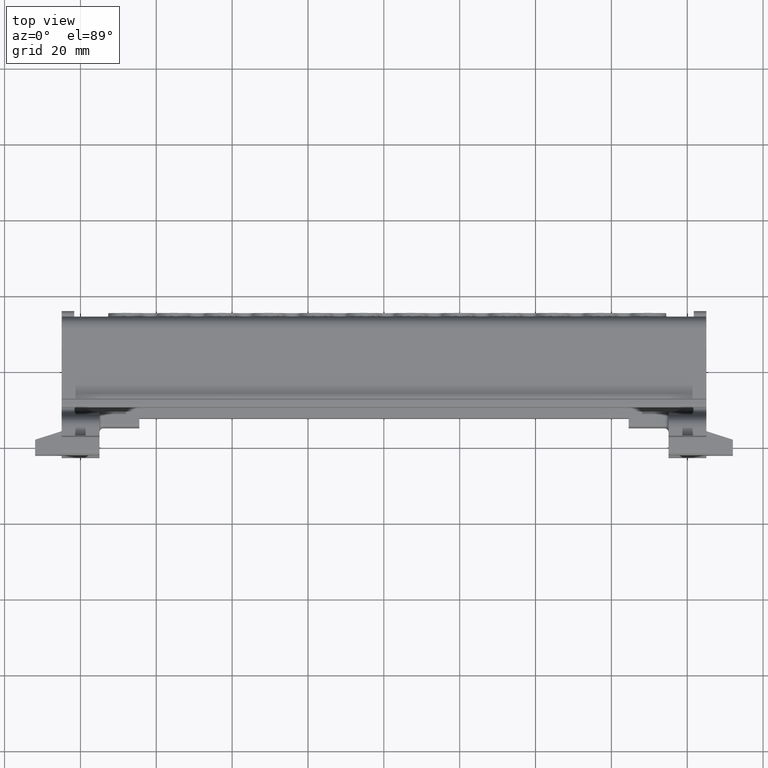
[diagram: clean part render]
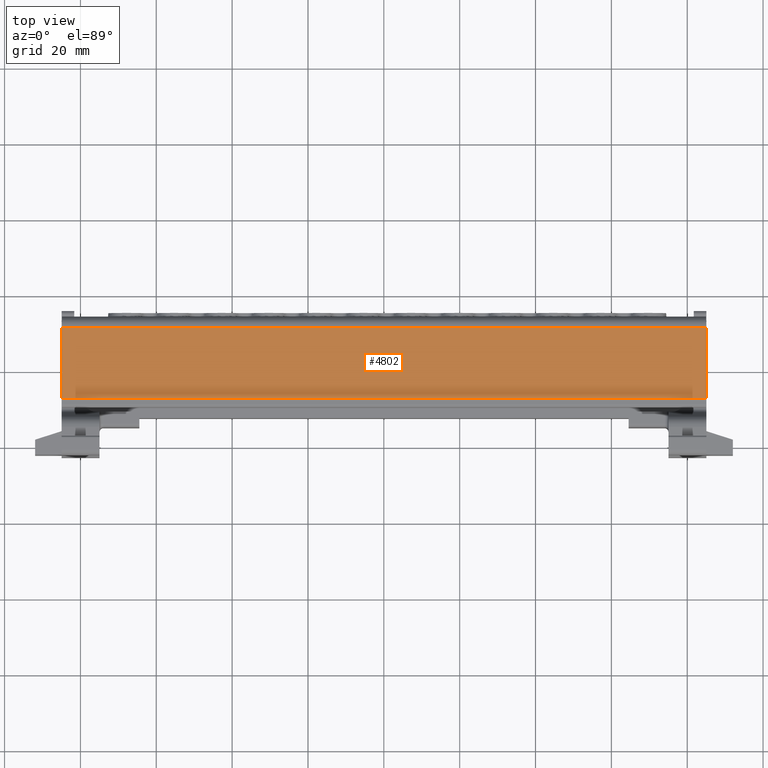
[diagram: same view with one face highlighted and labeled with its STEP entity id]
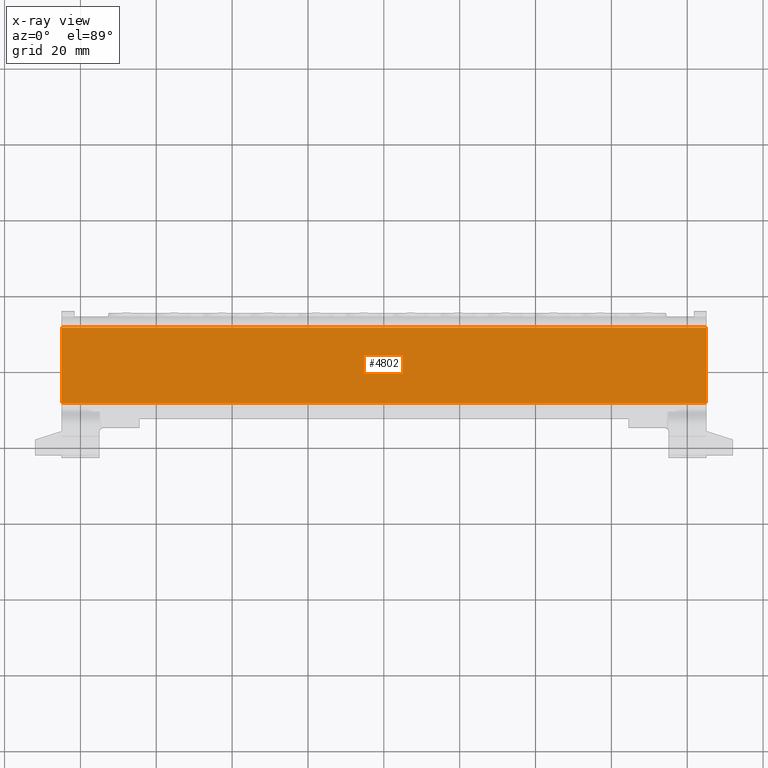
[diagram: x-ray of the same camera — body ghosted, the highlighted face saturated]
A machine part, top view. The second image highlights one B-rep face of the part: STEP entity #4802.
The next image is the same camera in x-ray: the body ghosted, the highlighted face saturated — about 0% of this face is hidden behind the body in this view.
In plain terms, the highlighted planar face has unit normal (0, 0.0175, 0.9998).
Its self-contained STEP definition (entity closure, byte-faithful):
#25 = EDGE_LOOP ( 'NONE', ( #2157, #2141, #2131, #2153 ) ) ;
#2131 = ORIENTED_EDGE ( 'NONE', *, *, #7014, .T. ) ;
#2141 = ORIENTED_EDGE ( 'NONE', *, *, #12001, .T. ) ;
#2153 = ORIENTED_EDGE ( 'NONE', *, *, #12154, .F. ) ;
#2157 = ORIENTED_EDGE ( 'NONE', *, *, #7176, .F. ) ;
#4802 = ADVANCED_FACE ( 'NONE', ( #31700 ), #31721, .T. ) ;
#7014 = EDGE_CURVE ( 'NONE', #9688, #9762, #8688, .T. ) ;
#7176 = EDGE_CURVE ( 'NONE', #9699, #9761, #13686, .T. ) ;
#8688 = LINE ( 'NONE', #8711, #24355 ) ;
#8705 = DIRECTION ( 'NONE',  ( -1.000000000000000000, 7.897574933814930700E-015, 3.853197141484226100E-015 ) ) ;
#8711 = CARTESIAN_POINT ( 'NONE',  ( -12.35269769582556900, 71.26518187041276100, 47.07379214778563900 ) ) ;
#9688 = VERTEX_POINT ( 'NONE', #16908 ) ;
#9699 = VERTEX_POINT ( 'NONE', #16888 ) ;
#9761 = VERTEX_POINT ( 'NONE', #16957 ) ;
#9762 = VERTEX_POINT ( 'NONE', #16930 ) ;
#12001 = EDGE_CURVE ( 'NONE', #9699, #9688, #18482, .T. ) ;
#12154 = EDGE_CURVE ( 'NONE', #9761, #9762, #18065, .T. ) ;
#13686 = LINE ( 'NONE', #13772, #24444 ) ;
#13754 = DIRECTION ( 'NONE',  ( -1.000000000000000000, 7.897574933814930700E-015, 3.853197141484226100E-015 ) ) ;
#13772 = CARTESIAN_POINT ( 'NONE',  ( -12.35269769582568100, 51.37580093707678900, 47.42095043314505900 ) ) ;
#16888 = CARTESIAN_POINT ( 'NONE',  ( 44.94230230417427000, 51.37580093707634200, 47.42095043314483900 ) ) ;
#16908 = CARTESIAN_POINT ( 'NONE',  ( 44.94230230417442600, 71.26518187041230600, 47.07379214778541900 ) ) ;
#16930 = CARTESIAN_POINT ( 'NONE',  ( -124.8476976958255300, 71.26518187041365600, 47.07379214778607200 ) ) ;
#16957 = CARTESIAN_POINT ( 'NONE',  ( -124.8476976958256900, 51.37580093707767800, 47.42095043314548500 ) ) ;
#18065 = LINE ( 'NONE', #18130, #34546 ) ;
#18119 = DIRECTION ( 'NONE',  ( 7.863057209979978000E-015, 0.9998477058144494800, -0.01745179582685387600 ) ) ;
#18130 = CARTESIAN_POINT ( 'NONE',  ( -124.8476976958256000, 62.90220683324508900, 47.21976331119930800 ) ) ;
#18482 = LINE ( 'NONE', #18483, #34213 ) ;
#18483 = CARTESIAN_POINT ( 'NONE',  ( 44.94230230417436200, 62.90220683324373900, 47.21976331119865500 ) ) ;
#18491 = DIRECTION ( 'NONE',  ( 7.863057209979978000E-015, 0.9998477058144494800, -0.01745179582685387600 ) ) ;
#24355 = VECTOR ( 'NONE', #8705, 1000.000000000000000 ) ;
#24444 = VECTOR ( 'NONE', #13754, 1000.000000000000000 ) ;
#28124 = AXIS2_PLACEMENT_3D ( 'NONE', #31735, #31722, #31729 ) ;
#31700 = FACE_OUTER_BOUND ( 'NONE', #25, .T. ) ;
#31721 = PLANE ( 'NONE',  #28124 ) ;
#31722 = DIRECTION ( 'NONE',  ( 3.990437184638742700E-015, 0.01745179582685387600, 0.9998477058144494800 ) ) ;
#31729 = DIRECTION ( 'NONE',  ( -6.946894150531415000E-015, -0.9998477058144494800, 0.01745179582685387600 ) ) ;
#31735 = CARTESIAN_POINT ( 'NONE',  ( -12.35269769582560100, 62.90220683324420000, 47.21976331119887500 ) ) ;
#34213 = VECTOR ( 'NONE', #18491, 999.9999999999998900 ) ;
#34546 = VECTOR ( 'NONE', #18119, 999.9999999999998900 ) ;